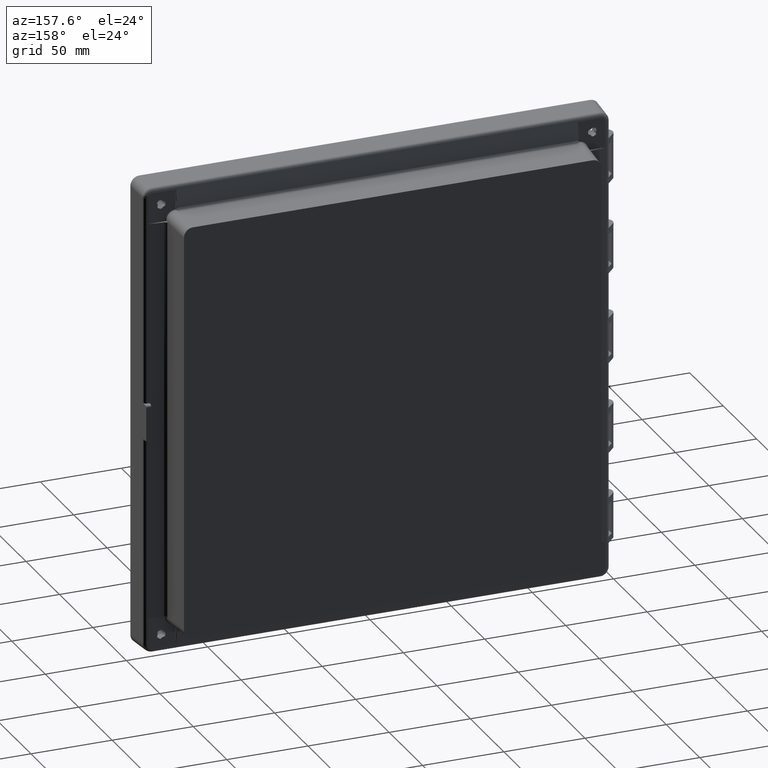
[diagram: clean part render]
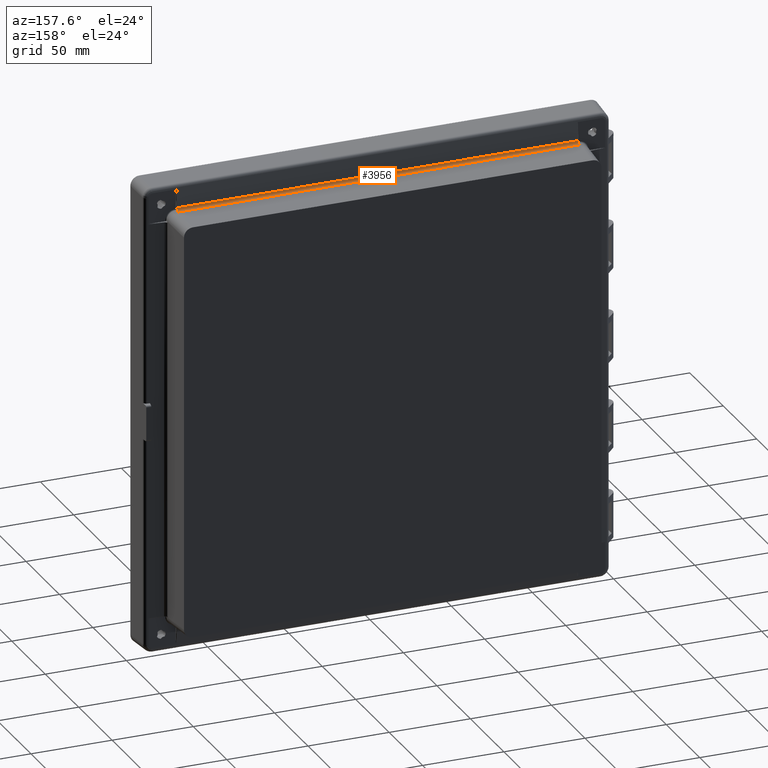
[diagram: same view with one face highlighted and labeled with its STEP entity id]
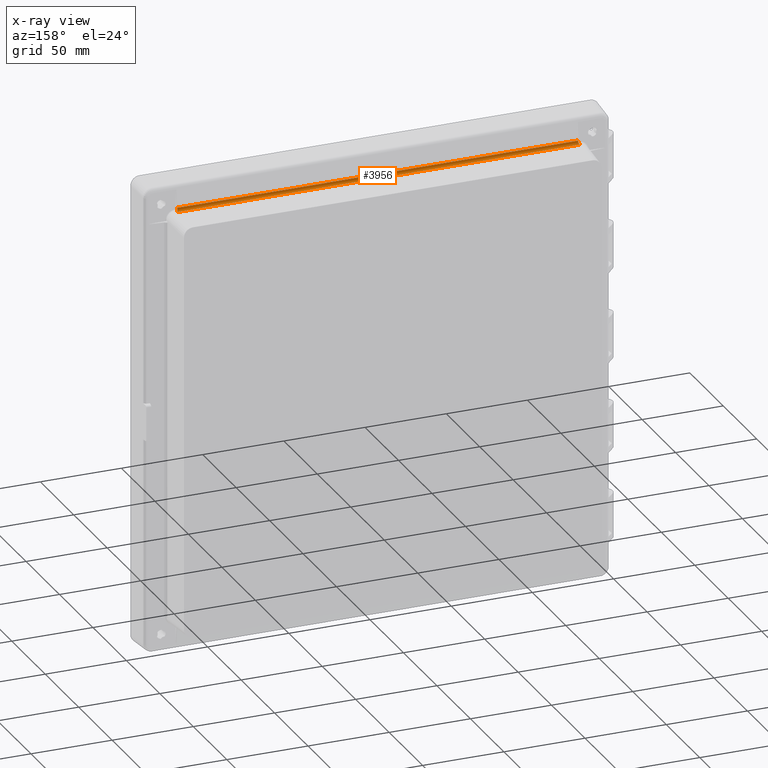
[diagram: x-ray of the same camera — body ghosted, the highlighted face saturated]
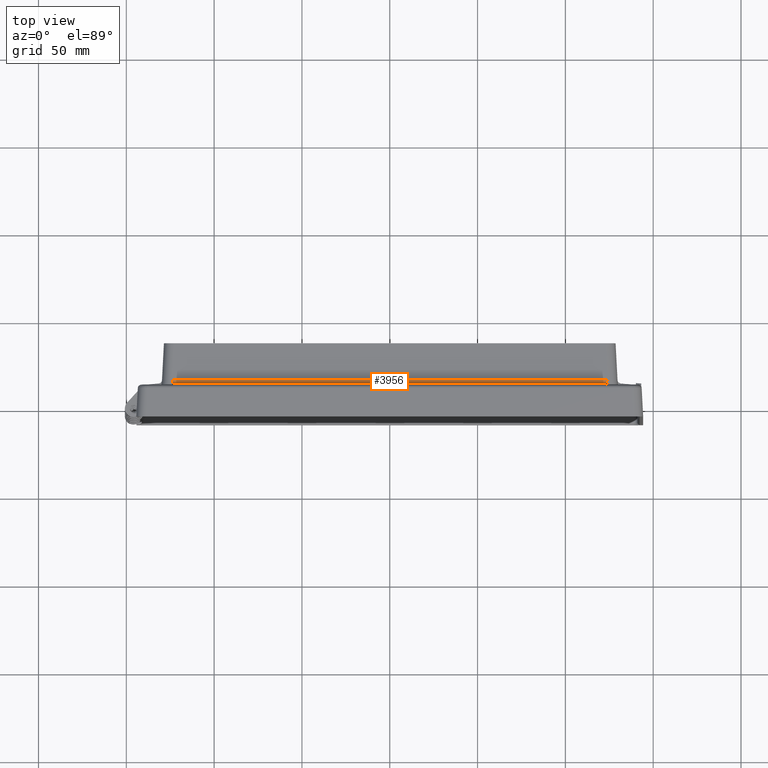
[diagram: same view with one face highlighted and labeled with its STEP entity id]
A machine part, auxiliary view. The second image highlights one B-rep face of the part: STEP entity #3956.
The next image is the same camera in x-ray: the body ghosted, the highlighted face saturated — about 0% of this face is hidden behind the body in this view.
A second angle (top view) of the same face is appended — the face is thin or edge-on in the first view.
In plain terms, the highlighted face is a freeform B-spline surface patch.
Its self-contained STEP definition (entity closure, byte-faithful):
#3930 = ORIENTED_EDGE ( 'NONE', *, *, #3931, .T. ) ;
#3931 = EDGE_CURVE ( 'NONE', #3953, #34199, #18402, .T. ) ;
#3932 = ORIENTED_EDGE ( 'NONE', *, *, #34203, .F. ) ;
#3933 = ORIENTED_EDGE ( 'NONE', *, *, #34217, .T. ) ;
#3934 = ORIENTED_EDGE ( 'NONE', *, *, #3935, .T. ) ;
#3935 = EDGE_CURVE ( 'NONE', #34216, #3963, #18397, .T. ) ;
#3936 = ORIENTED_EDGE ( 'NONE', *, *, #3947, .T. ) ;
#3937 = ORIENTED_EDGE ( 'NONE', *, *, #3955, .F. ) ;
#3945 = VERTEX_POINT ( 'NONE', #18432 ) ;
#3947 = EDGE_CURVE ( 'NONE', #3963, #3945, #18426, .T. ) ;
#3953 = VERTEX_POINT ( 'NONE', #18450 ) ;
#3955 = EDGE_CURVE ( 'NONE', #3953, #3945, #18752, .T. ) ;
#3956 = ADVANCED_FACE ( 'NONE', ( #18753 ), #18746, .T. ) ;
#3957 = EDGE_LOOP ( 'NONE', ( #3930, #3932, #3933, #3934, #3936, #3937 ) ) ;
#3963 = VERTEX_POINT ( 'NONE', #18755 ) ;
#18394 = DIRECTION ( 'NONE',  ( 1.000000000000000000, -1.404876236710706800E-017, 0.0000000000000000000 ) ) ;
#18395 = VECTOR ( 'NONE', #18394, 1000.000000000000000 ) ;
#18396 = CARTESIAN_POINT ( 'NONE',  ( 2.428612866367529900E-013, 11.33487797383372900, 130.6126843953759900 ) ) ;
#18397 = LINE ( 'NONE', #18396, #18395 ) ;
#18399 = DIRECTION ( 'NONE',  ( -1.000000000000000000, 0.0000000000000000000, 0.0000000000000000000 ) ) ;
#18400 = VECTOR ( 'NONE', #18399, 1000.000000000000000 ) ;
#18401 = CARTESIAN_POINT ( 'NONE',  ( -1.595945597898662500E-013, 13.22099845808221200, 128.8071168309074000 ) ) ;
#18402 = LINE ( 'NONE', #18401, #18400 ) ;
#18426 = B_SPLINE_CURVE_WITH_KNOTS ( 'NONE', 3,
 ( #18456, #18455, #18454, #18453 ),
 .UNSPECIFIED., .F., .F.,
 ( 4, 4 ),
 ( 0.0000000000000000000, 1.000000000000000000 ),
 .UNSPECIFIED. ) ;
#18432 = CARTESIAN_POINT ( 'NONE',  ( 123.4540293618430000, 11.74488450292418500, 129.5791754920520600 ) ) ;
#18450 = CARTESIAN_POINT ( 'NONE',  ( 124.1615386664093100, 13.22099845808221200, 128.8071168309074000 ) ) ;
#18453 = CARTESIAN_POINT ( 'NONE',  ( 123.4540293618430000, 11.74488450292418500, 129.5791754920520600 ) ) ;
#18454 = CARTESIAN_POINT ( 'NONE',  ( 123.4683427497902000, 11.50640715232380500, 129.8868652569333100 ) ) ;
#18455 = CARTESIAN_POINT ( 'NONE',  ( 123.4765796369348900, 11.36955979117498400, 130.2524999508269200 ) ) ;
#18456 = CARTESIAN_POINT ( 'NONE',  ( 123.4787400232769700, 11.33487797383372700, 130.6126843953759900 ) ) ;
#18724 = CARTESIAN_POINT ( 'NONE',  ( 123.4540293618430000, 11.74488450292418500, 129.5791754920520600 ) ) ;
#18725 = CARTESIAN_POINT ( 'NONE',  ( 123.4585696537131600, 11.79112903050427100, 129.5195095845729200 ) ) ;
#18726 = CARTESIAN_POINT ( 'NONE',  ( 123.4621841594397900, 11.88172477982898900, 129.4054725214292600 ) ) ;
#18727 = CARTESIAN_POINT ( 'NONE',  ( 123.5218358477895000, 12.05818438136060600, 129.2570026673881200 ) ) ;
#18728 = CARTESIAN_POINT ( 'NONE',  ( 123.5292894353237200, 12.07883699159207500, 129.2402931792161400 ) ) ;
#18729 = CARTESIAN_POINT ( 'NONE',  ( 123.5415649508305100, 12.11131316966632300, 129.2151129597112900 ) ) ;
#18730 = CARTESIAN_POINT ( 'NONE',  ( 123.5458516271563100, 12.12239375010930000, 129.2066986697049600 ) ) ;
#18731 = CARTESIAN_POINT ( 'NONE',  ( 123.5548492060864200, 12.14508033742076000, 129.1898549609562100 ) ) ;
#18732 = CARTESIAN_POINT ( 'NONE',  ( 123.5555863940434200, 12.14682821883266500, 129.1886290328709800 ) ) ;
#18733 = CARTESIAN_POINT ( 'NONE',  ( 123.5654120696084000, 12.17083623699738500, 129.1712162166021200 ) ) ;
#18734 = CARTESIAN_POINT ( 'NONE',  ( 123.5752945830214300, 12.19395480818993400, 129.1549568759038800 ) ) ;
#18735 = CARTESIAN_POINT ( 'NONE',  ( 123.6124959825424400, 12.27571601335535200, 129.1008305279186500 ) ) ;
#18736 = CARTESIAN_POINT ( 'NONE',  ( 123.6473870667081100, 12.34694484006066700, 129.0573782588589300 ) ) ;
#18737 = CARTESIAN_POINT ( 'NONE',  ( 123.6986642704716700, 12.44220593112892500, 129.0100628916431700 ) ) ;
#18738 = CARTESIAN_POINT ( 'NONE',  ( 123.6999009760971300, 12.44449441153572900, 129.0089417590167500 ) ) ;
#18739 = CARTESIAN_POINT ( 'NONE',  ( 123.7041746196779600, 12.45239672510729400, 129.0050788724599900 ) ) ;
#18740 = CARTESIAN_POINT ( 'NONE',  ( 123.7106057738224800, 12.46426007437791800, 128.9993262122615400 ) ) ;
#18741 = CARTESIAN_POINT ( 'NONE',  ( 123.7170994586580300, 12.47614982708350500, 128.9937000448053900 ) ) ;
#18742 = CARTESIAN_POINT ( 'NONE',  ( 123.7301700348426000, 12.49995629184375700, 128.9826198683096800 ) ) ;
#18743 = CARTESIAN_POINT ( 'NONE',  ( 123.7390003778968300, 12.51586139961726800, 128.9754643700013000 ) ) ;
#18744 = CARTESIAN_POINT ( 'NONE',  ( 123.7657721540910400, 12.56363405566742100, 128.9546988224366300 ) ) ;
#18745 = CARTESIAN_POINT ( 'NONE',  ( 123.7839566302385600, 12.59557909613143800, 128.9417738039948900 ) ) ;
#18746 =( BOUNDED_SURFACE ( )  B_SPLINE_SURFACE ( 3, 1, ( 
 ( #18764, #18763 ),
 ( #18762, #18761 ),
 ( #18760, #18759 ),
 ( #18758, #18757 ) ),
 .UNSPECIFIED., .F., .F., .F. ) 
 B_SPLINE_SURFACE_WITH_KNOTS ( ( 4, 4 ),
 ( 2, 2 ),
 ( 0.0000000000000000000, 1.000000000000000000 ),
 ( 0.0000000000000000000, 1.000000000000000000 ),
 .UNSPECIFIED. ) 
 GEOMETRIC_REPRESENTATION_ITEM ( )  RATIONAL_B_SPLINE_SURFACE ( (
 ( 1.000000000000000000, 1.000000000000000000),
 ( 0.8383766562560799300, 0.8383766562560799300),
 ( 0.8383766562560799300, 0.8383766562560799300),
 ( 1.000000000000000000, 1.000000000000000000) ) ) 
 REPRESENTATION_ITEM ( '' )  SURFACE ( )  );
#18747 = CARTESIAN_POINT ( 'NONE',  ( 123.8396545946016400, 12.69178136889567900, 128.9057201772465600 ) ) ;
#18748 = CARTESIAN_POINT ( 'NONE',  ( 123.8781079326969200, 12.75644722803263100, 128.8852700619348500 ) ) ;
#18749 = CARTESIAN_POINT ( 'NONE',  ( 123.9965663708797200, 12.95204031019037300, 128.8343734349403200 ) ) ;
#18750 = CARTESIAN_POINT ( 'NONE',  ( 124.0794420720356000, 13.08463186153877400, 128.8143363762858100 ) ) ;
#18751 = CARTESIAN_POINT ( 'NONE',  ( 124.1615386664093100, 13.22099845808221200, 128.8071168309074000 ) ) ;
#18752 = B_SPLINE_CURVE_WITH_KNOTS ( 'NONE', 3,
 ( #18751, #18750, #18749, #18748, #18747, #18745, #18744, #18743, #18742, #18741, #18740, #18739, #18738, #18737, #18736, #18735, #18734, #18733, #18732, #18731, #18730, #18729, #18728, #18727, #18726, #18725, #18724 ),
 .UNSPECIFIED., .F., .F.,
 ( 4, 2, 2, 2, 2, 1, 2, 2, 2, 2, 2, 2, 2, 4 ),
 ( 0.0000000000000000000, 0.2499999999999524800, 0.3749999999999231200, 0.4374999999999095700, 0.4687499999999146200, 0.4843749999999038500, 0.4921874999999033000, 0.4999999999999027400, 0.6249999999998752100, 0.6874999999998798700, 0.7031249999998802100, 0.7187499999998805400, 0.7499999999998855400, 1.000000000000000000 ),
 .UNSPECIFIED. ) ;
#18753 = FACE_OUTER_BOUND ( 'NONE', #3957, .T. ) ;
#18755 = CARTESIAN_POINT ( 'NONE',  ( 123.4787400232769700, 11.33487797383372700, 130.6126843953759900 ) ) ;
#18757 = CARTESIAN_POINT ( 'NONE',  ( 125.6531943579538100, 11.33487797383369200, 130.6126843953759900 ) ) ;
#18758 = CARTESIAN_POINT ( 'NONE',  ( -125.6532254802184000, 11.33487797383369500, 130.6126843953759900 ) ) ;
#18759 = CARTESIAN_POINT ( 'NONE',  ( 125.6531943579538100, 11.43437859681027500, 129.5793309160461000 ) ) ;
#18760 = CARTESIAN_POINT ( 'NONE',  ( -125.6532254802184000, 11.43437859681027600, 129.5793309160461000 ) ) ;
#18761 = CARTESIAN_POINT ( 'NONE',  ( 125.6531943579538100, 12.18428834607553800, 128.8614485056383200 ) ) ;
#18762 = CARTESIAN_POINT ( 'NONE',  ( -125.6532254802184000, 12.18428834607553800, 128.8614485056383200 ) ) ;
#18763 = CARTESIAN_POINT ( 'NONE',  ( 125.6531943579538100, 13.22099845808223500, 128.8071168309078300 ) ) ;
#18764 = CARTESIAN_POINT ( 'NONE',  ( -125.6532254802184000, 13.22099845808223900, 128.8071168309078300 ) ) ;
#33659 = CARTESIAN_POINT ( 'NONE',  ( -123.4540293618430000, 11.74488450292419400, 129.5791754920520600 ) ) ;
#33710 = CARTESIAN_POINT ( 'NONE',  ( -124.1615386664096400, 13.22099845808221200, 128.8071168309074000 ) ) ;
#33714 = CARTESIAN_POINT ( 'NONE',  ( -123.5116000605919300, 12.04400895241853100, 129.2689773083061500 ) ) ;
#33715 = CARTESIAN_POINT ( 'NONE',  ( -123.5079961448656600, 12.03320764500817200, 129.2780890811469600 ) ) ;
#33716 = CARTESIAN_POINT ( 'NONE',  ( -123.5010048216083600, 12.01169425873122200, 129.2965010335303200 ) ) ;
#33717 = CARTESIAN_POINT ( 'NONE',  ( -123.4966346518255300, 11.99747204055293900, 129.3090265014367900 ) ) ;
#33718 = CARTESIAN_POINT ( 'NONE',  ( -123.4843943940966000, 11.95516943683714000, 129.3473572050329200 ) ) ;
#33719 = CARTESIAN_POINT ( 'NONE',  ( -123.4775729831042800, 11.92756066006578700, 129.3738561123056200 ) ) ;
#33720 = CARTESIAN_POINT ( 'NONE',  ( -123.4708043382475500, 11.89380566383793100, 129.4081297777578900 ) ) ;
#33721 = CARTESIAN_POINT ( 'NONE',  ( -123.4690852049817200, 11.88479860497951000, 129.4174091452987900 ) ) ;
#33722 = CARTESIAN_POINT ( 'NONE',  ( -123.4663999824284600, 11.86963550387554100, 129.4333209655073100 ) ) ;
#33723 = CARTESIAN_POINT ( 'NONE',  ( -123.4627511874118700, 11.84748244858719700, 129.4569578167678400 ) ) ;
#33724 = CARTESIAN_POINT ( 'NONE',  ( -123.4601349288328900, 11.82705174428894600, 129.4798442966888100 ) ) ;
#33725 = CARTESIAN_POINT ( 'NONE',  ( -123.4559822355550400, 11.78832964032652300, 129.5244914139263100 ) ) ;
#33726 = CARTESIAN_POINT ( 'NONE',  ( -123.4546309995161800, 11.76534897034455300, 129.5527711996679700 ) ) ;
#33727 = CARTESIAN_POINT ( 'NONE',  ( -123.4540293618430000, 11.74488450292419400, 129.5791754920520600 ) ) ;
#33728 = B_SPLINE_CURVE_WITH_KNOTS ( 'NONE', 3,
 ( #33727, #33726, #33725, #33724, #33723, #33722, #33721, #33720, #33719, #33718, #33717, #33716, #33715, #33714, #33791, #33790, #33789, #33788, #33787, #33786, #33785, #33784, #33783, #33782, #33781, #33780, #33779, #33778, #33777, #33776, #33775, #33774, #33773, #33772, #33771, #33770, #33769, #33768, #33767, #33766, #33765, #33764 ),
 .UNSPECIFIED., .F., .F.,
 ( 4, 2, 1, 2, 2, 2, 2, 1, 1, 2, 2, 2, 2, 1, 1, 1, 2, 2, 2, 2, 1, 1, 2, 2, 4 ),
 ( 0.0000000000000000000, 0.06249999999992250600, 0.09374999999988464800, 0.1093749999998508600, 0.1249999999998170600, 0.1874999999997538100, 0.2187499999997198400, 0.2343749999996887800, 0.2421874999996704000, 0.2460937499996759300, 0.2499999999996814200, 0.3124999999985682600, 0.3437499999980116500, 0.3593749999977325900, 0.3671874999975905900, 0.3710937499975213200, 0.3730468749974891200, 0.3749999999974568700, 0.4374999999975445200, 0.4687499999975883200, 0.4843749999976035800, 0.4921874999976080200, 0.4960937499976170700, 0.4999999999976261800, 1.000000000000000000 ),
 .UNSPECIFIED. ) ;
#33764 = CARTESIAN_POINT ( 'NONE',  ( -124.1615386664096400, 13.22099845808221200, 128.8071168309074000 ) ) ;
#33765 = CARTESIAN_POINT ( 'NONE',  ( -123.9956125471309300, 12.94962764557467400, 128.8214811539485000 ) ) ;
#33766 = CARTESIAN_POINT ( 'NONE',  ( -123.8321725333932100, 12.68918054857172000, 128.8874922896232800 ) ) ;
#33767 = CARTESIAN_POINT ( 'NONE',  ( -123.6938242567972600, 12.43526577026431000, 129.0135126642368300 ) ) ;
#33768 = CARTESIAN_POINT ( 'NONE',  ( -123.6916118330698400, 12.43119972571249800, 129.0155399222175300 ) ) ;
#33769 = CARTESIAN_POINT ( 'NONE',  ( -123.6883930718214400, 12.42526905672418500, 129.0185193762832500 ) ) ;
#33770 = CARTESIAN_POINT ( 'NONE',  ( -123.6836317095520200, 12.41647657174426600, 129.0229635547624400 ) ) ;
#33771 = CARTESIAN_POINT ( 'NONE',  ( -123.6729847552495700, 12.39668539441481300, 129.0331467663039000 ) ) ;
#33772 = CARTESIAN_POINT ( 'NONE',  ( -123.6646372512990400, 12.38096238947100000, 129.0415172877946500 ) ) ;
#33773 = CARTESIAN_POINT ( 'NONE',  ( -123.6489406667968000, 12.35115875095763700, 129.0576902544412100 ) ) ;
#33774 = CARTESIAN_POINT ( 'NONE',  ( -123.6398088779935200, 12.33348276230457000, 129.0677110186099400 ) ) ;
#33775 = CARTESIAN_POINT ( 'NONE',  ( -123.6160758640483400, 12.28684136235809500, 129.0948970332974900 ) ) ;
#33776 = CARTESIAN_POINT ( 'NONE',  ( -123.6050778350662100, 12.26421310636141500, 129.1091471838985600 ) ) ;
#33777 = CARTESIAN_POINT ( 'NONE',  ( -123.5978552927449500, 12.24914560903887700, 129.1187629583228300 ) ) ;
#33778 = CARTESIAN_POINT ( 'NONE',  ( -123.5964493496140800, 12.24620853174647400, 129.1206409805400900 ) ) ;
#33779 = CARTESIAN_POINT ( 'NONE',  ( -123.5948484484025300, 12.24285289264079400, 129.1227967467884200 ) ) ;
#33780 = CARTESIAN_POINT ( 'NONE',  ( -123.5924709156897200, 12.23785740768561100, 129.1260166410855600 ) ) ;
#33781 = CARTESIAN_POINT ( 'NONE',  ( -123.5870883943838500, 12.22646617605436800, 129.1334311449274400 ) ) ;
#33782 = CARTESIAN_POINT ( 'NONE',  ( -123.5769702452533100, 12.20473626620185000, 129.1478477570322000 ) ) ;
#33783 = CARTESIAN_POINT ( 'NONE',  ( -123.5693604374705500, 12.18789124628194100, 129.1594367303632100 ) ) ;
#33784 = CARTESIAN_POINT ( 'NONE',  ( -123.5554375225492100, 12.15651749173489700, 129.1814401467962300 ) ) ;
#33785 = CARTESIAN_POINT ( 'NONE',  ( -123.5478809852231200, 12.13868773897053200, 129.1945371791751700 ) ) ;
#33786 = CARTESIAN_POINT ( 'NONE',  ( -123.5295079514223500, 12.09407241011666500, 129.2281037213699900 ) ) ;
#33787 = CARTESIAN_POINT ( 'NONE',  ( -123.5228809790554700, 12.07611787068473900, 129.2427353343719300 ) ) ;
#33788 = CARTESIAN_POINT ( 'NONE',  ( -123.5203319825077600, 12.06898254967389800, 129.2485011168070300 ) ) ;
#33789 = CARTESIAN_POINT ( 'NONE',  ( -123.5191853063407300, 12.06576366251800400, 129.2511074190095100 ) ) ;
#33790 = CARTESIAN_POINT ( 'NONE',  ( -123.5179002022380200, 12.06212958255441200, 129.2540650113504900 ) ) ;
#33791 = CARTESIAN_POINT ( 'NONE',  ( -123.5159844480106100, 12.05668315841603900, 129.2585134767528800 ) ) ;
#34069 = CARTESIAN_POINT ( 'NONE',  ( -123.4787400232764900, 11.33487797383373100, 130.6126843953759900 ) ) ;
#34070 = CARTESIAN_POINT ( 'NONE',  ( -123.4765735287386400, 11.36958249453205400, 130.2522641674486900 ) ) ;
#34071 = CARTESIAN_POINT ( 'NONE',  ( -123.4683366415939600, 11.50655226132247400, 129.8866780334776100 ) ) ;
#34072 = CARTESIAN_POINT ( 'NONE',  ( -123.4540293618430000, 11.74488450292419400, 129.5791754920520600 ) ) ;
#34073 = B_SPLINE_CURVE_WITH_KNOTS ( 'NONE', 3,
 ( #34072, #34071, #34070, #34069 ),
 .UNSPECIFIED., .F., .F.,
 ( 4, 4 ),
 ( 0.0000000000000000000, 1.000000000000000000 ),
 .UNSPECIFIED. ) ;
#34074 = CARTESIAN_POINT ( 'NONE',  ( -123.4787400232764900, 11.33487797383373100, 130.6126843953759900 ) ) ;
#34191 = VERTEX_POINT ( 'NONE', #33659 ) ;
#34199 = VERTEX_POINT ( 'NONE', #33710 ) ;
#34203 = EDGE_CURVE ( 'NONE', #34191, #34199, #33728, .T. ) ;
#34216 = VERTEX_POINT ( 'NONE', #34074 ) ;
#34217 = EDGE_CURVE ( 'NONE', #34191, #34216, #34073, .T. ) ;